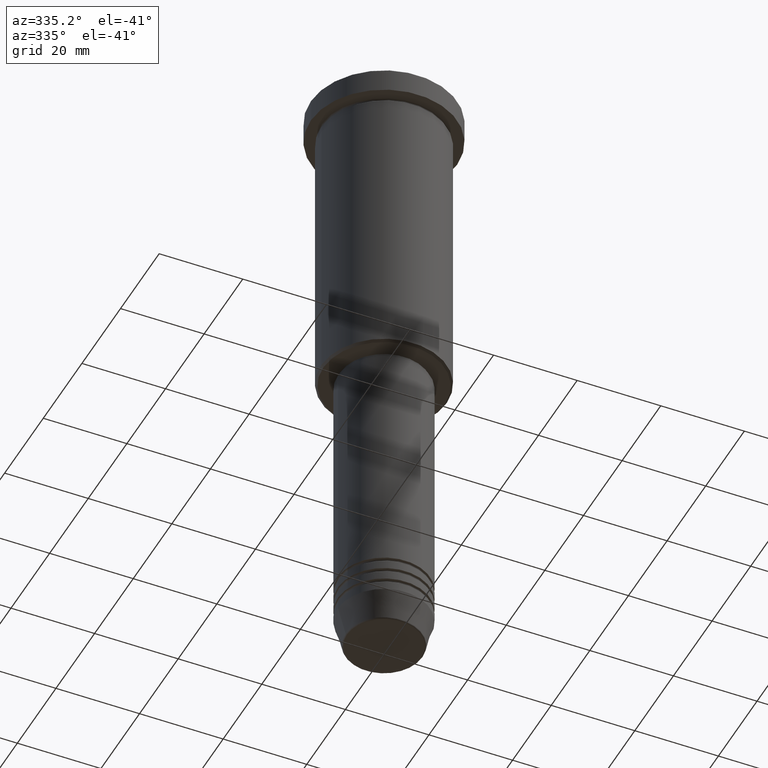
[diagram: clean part render]
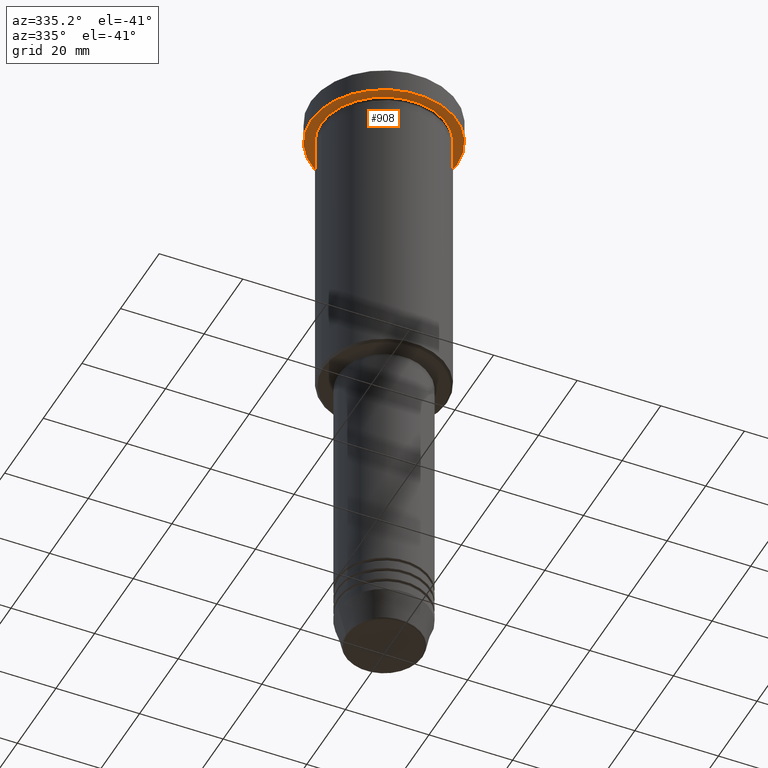
[diagram: same view with one face highlighted and labeled with its STEP entity id]
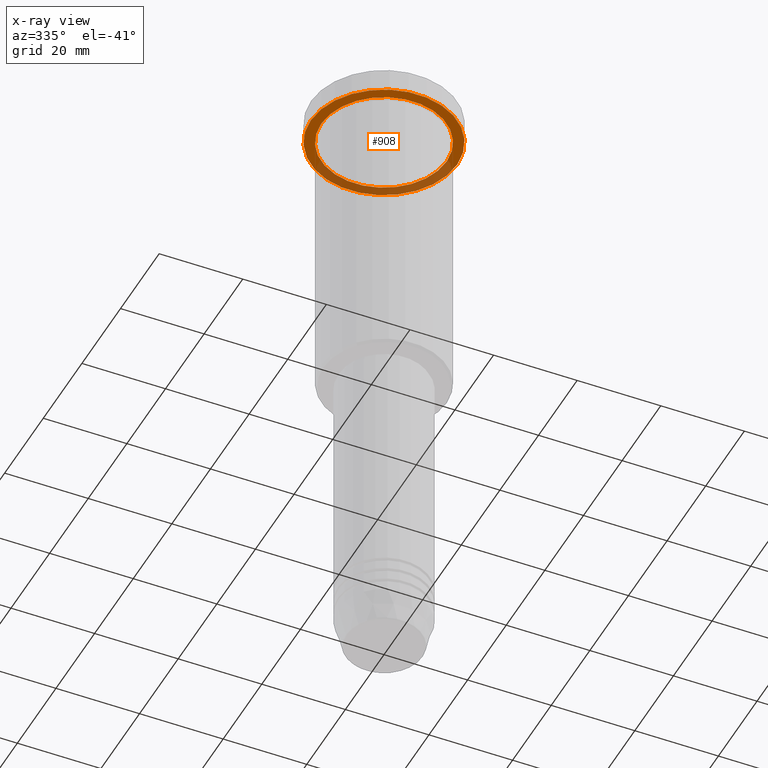
[diagram: x-ray of the same camera — body ghosted, the highlighted face saturated]
A machine part, auxiliary view. The second image highlights one B-rep face of the part: STEP entity #908.
The next image is the same camera in x-ray: the body ghosted, the highlighted face saturated — about 35% of this face is hidden behind the body in this view.
In plain terms, the highlighted planar face has unit normal (0, 0, -1).
Its self-contained STEP definition (entity closure, byte-faithful):
#27 = EDGE_CURVE ( 'NONE', #566, #305, #884, .T. ) ;
#33 = CIRCLE ( 'NONE', #153, 15.00000000000000000 ) ;
#47 = DIRECTION ( 'NONE',  ( -0.000000000000000000, -0.000000000000000000, 1.000000000000000000 ) ) ;
#69 = FACE_BOUND ( 'NONE', #247, .T. ) ;
#92 = AXIS2_PLACEMENT_3D ( 'NONE', #1183, #821, #475 ) ;
#135 = CARTESIAN_POINT ( 'NONE',  ( 0.000000000000000000, 0.000000000000000000, -5.999999999999995559 ) ) ;
#153 = AXIS2_PLACEMENT_3D ( 'NONE', #329, #1148, #171 ) ;
#171 = DIRECTION ( 'NONE',  ( -1.000000000000000000, 0.000000000000000000, 0.000000000000000000 ) ) ;
#172 = CIRCLE ( 'NONE', #1024, 17.50000000000000000 ) ;
#247 = EDGE_LOOP ( 'NONE', ( #422, #727 ) ) ;
#303 = EDGE_LOOP ( 'NONE', ( #598, #1072 ) ) ;
#305 = VERTEX_POINT ( 'NONE', #575 ) ;
#329 = CARTESIAN_POINT ( 'NONE',  ( 0.000000000000000000, 0.000000000000000000, -5.999999999999995559 ) ) ;
#364 = AXIS2_PLACEMENT_3D ( 'NONE', #786, #47, #1129 ) ;
#417 = VERTEX_POINT ( 'NONE', #582 ) ;
#422 = ORIENTED_EDGE ( 'NONE', *, *, #961, .T. ) ;
#475 = DIRECTION ( 'NONE',  ( -1.000000000000000000, 0.000000000000000000, -0.000000000000000000 ) ) ;
#499 = DIRECTION ( 'NONE',  ( 1.000000000000000000, 0.000000000000000000, 0.000000000000000000 ) ) ;
#508 = DIRECTION ( 'NONE',  ( -1.000000000000000000, 0.000000000000000000, 0.000000000000000000 ) ) ;
#566 = VERTEX_POINT ( 'NONE', #1053 ) ;
#575 = CARTESIAN_POINT ( 'NONE',  ( 17.50000000000000000, 0.000000000000000000, -5.999999999999995559 ) ) ;
#582 = CARTESIAN_POINT ( 'NONE',  ( -15.00000000000000000, 0.000000000000000000, -5.999999999999994671 ) ) ;
#598 = ORIENTED_EDGE ( 'NONE', *, *, #955, .F. ) ;
#605 = CARTESIAN_POINT ( 'NONE',  ( 0.000000000000000000, 0.000000000000000000, -5.999999999999995559 ) ) ;
#682 = DIRECTION ( 'NONE',  ( -0.000000000000000000, -0.000000000000000000, 1.000000000000000000 ) ) ;
#705 = AXIS2_PLACEMENT_3D ( 'NONE', #605, #963, #508 ) ;
#727 = ORIENTED_EDGE ( 'NONE', *, *, #857, .T. ) ;
#786 = CARTESIAN_POINT ( 'NONE',  ( 0.000000000000000000, 0.000000000000000000, -5.999999999999995559 ) ) ;
#821 = DIRECTION ( 'NONE',  ( 0.000000000000000000, 0.000000000000000000, -1.000000000000000000 ) ) ;
#843 = FACE_OUTER_BOUND ( 'NONE', #303, .T. ) ;
#857 = EDGE_CURVE ( 'NONE', #976, #417, #988, .T. ) ;
#884 = CIRCLE ( 'NONE', #364, 17.50000000000000000 ) ;
#908 = ADVANCED_FACE ( 'NONE', ( #69, #843 ), #1014, .T. ) ;
#955 = EDGE_CURVE ( 'NONE', #305, #566, #172, .T. ) ;
#961 = EDGE_CURVE ( 'NONE', #417, #976, #33, .T. ) ;
#963 = DIRECTION ( 'NONE',  ( -0.000000000000000000, -0.000000000000000000, 1.000000000000000000 ) ) ;
#976 = VERTEX_POINT ( 'NONE', #977 ) ;
#977 = CARTESIAN_POINT ( 'NONE',  ( 15.00000000000000000, 1.836970198721029589E-15, -5.999999999999994671 ) ) ;
#988 = CIRCLE ( 'NONE', #705, 15.00000000000000000 ) ;
#1014 = PLANE ( 'NONE',  #92 ) ;
#1024 = AXIS2_PLACEMENT_3D ( 'NONE', #135, #682, #499 ) ;
#1053 = CARTESIAN_POINT ( 'NONE',  ( -17.50000000000000000, 2.143131898507868248E-15, -5.999999999999995559 ) ) ;
#1072 = ORIENTED_EDGE ( 'NONE', *, *, #27, .F. ) ;
#1129 = DIRECTION ( 'NONE',  ( 1.000000000000000000, 0.000000000000000000, 0.000000000000000000 ) ) ;
#1148 = DIRECTION ( 'NONE',  ( -0.000000000000000000, -0.000000000000000000, 1.000000000000000000 ) ) ;
#1183 = CARTESIAN_POINT ( 'NONE',  ( 0.000000000000000000, 17.50000000000000000, -5.999999999999995559 ) ) ;